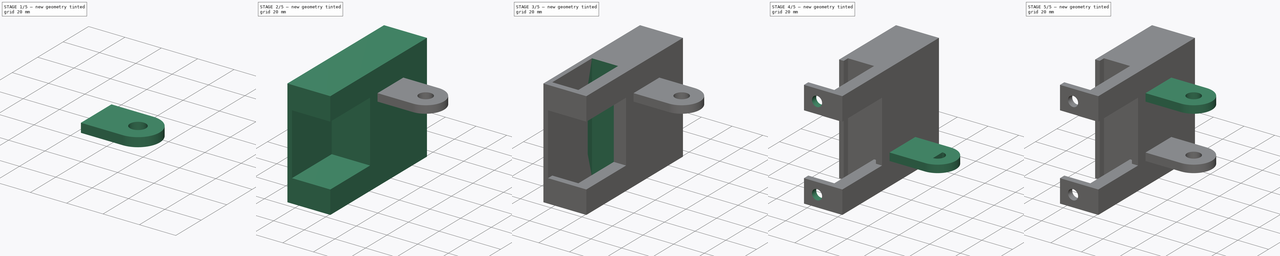
[diagram: build sequence overview — one tinted view per stage of 5, left to right]
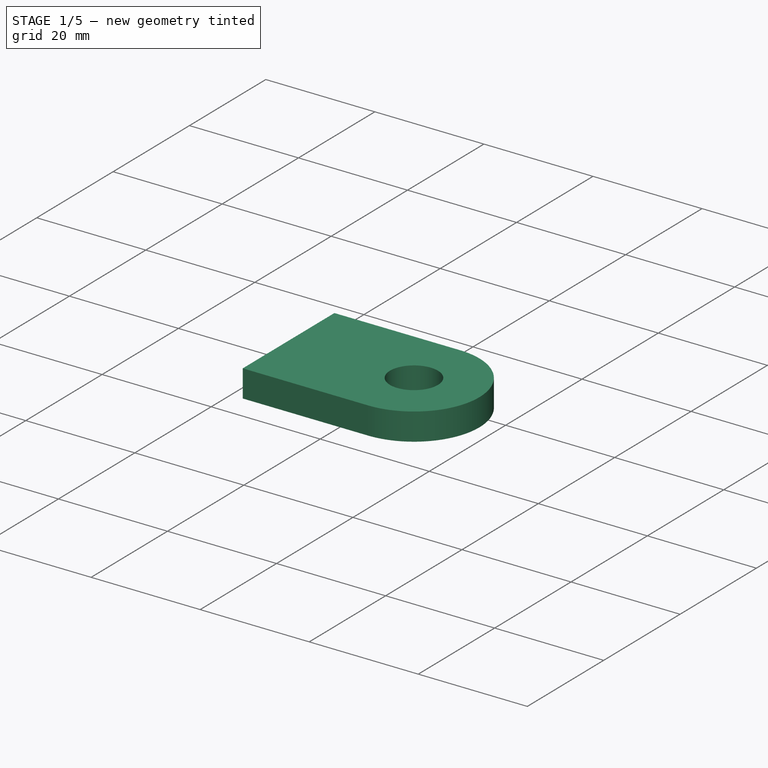
[diagram: stage 1 of 5 — iso view after this stage's code; geometry added in this stage tinted green]
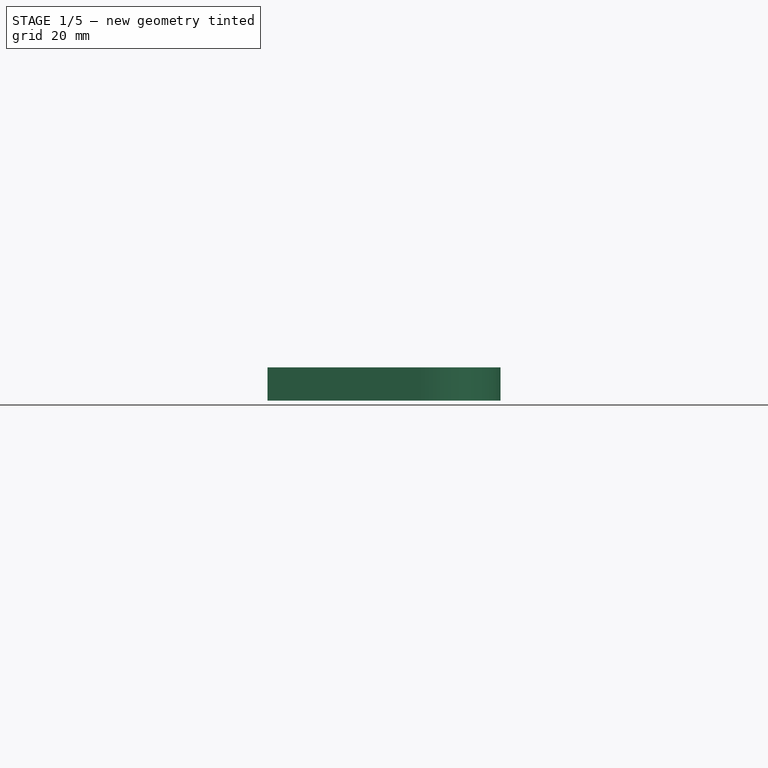
[diagram: stage 1 of 5 — front view after this stage's code; geometry added in this stage tinted green]
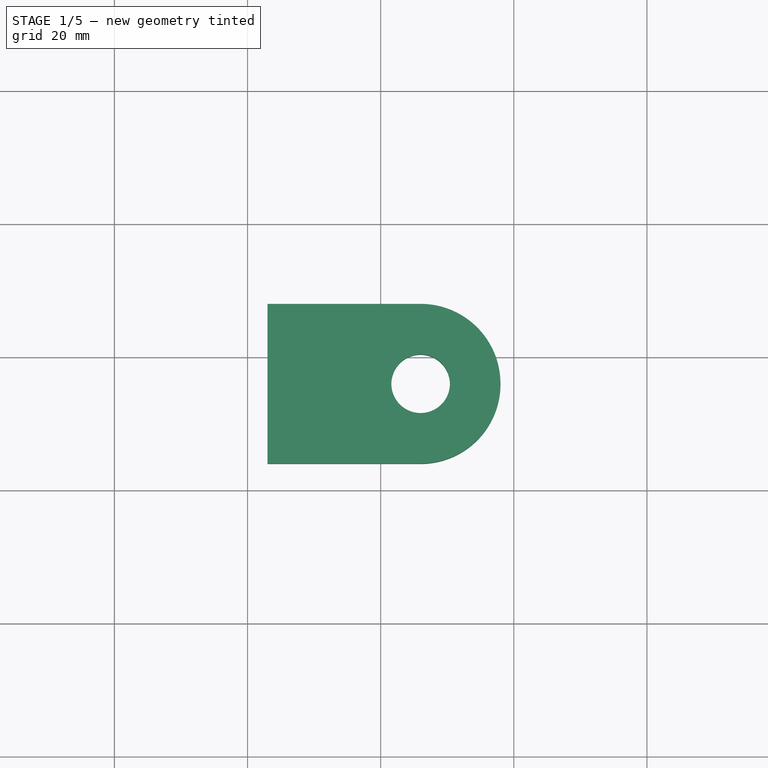
[diagram: stage 1 of 5 — top view after this stage's code; geometry added in this stage tinted green]
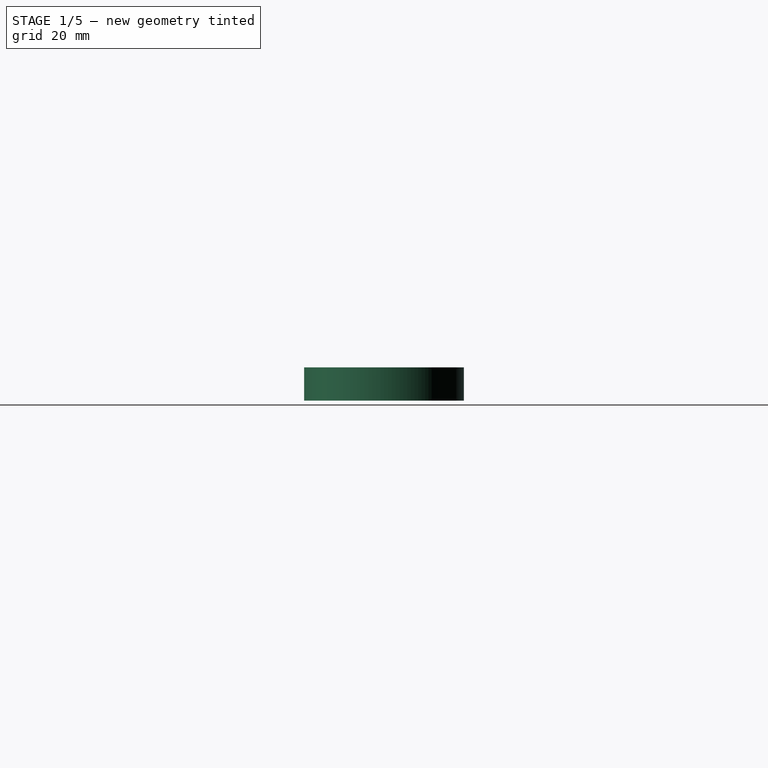
[diagram: stage 1 of 5 — right view after this stage's code; geometry added in this stage tinted green]
FCSTD DOCUMENT  (FreeCAD 0.17R13541 (Git))
Label: LimitSwitchHolder_y-plus
License: All rights reserved
LicenseURL: http://en.wikipedia.org/wiki/All_rights_reserved
objects: Sketcher::SketchObject×15, PartDesign::Pad×10, PartDesign::Body×10, PartDesign::ShapeBinder×9, PartDesign::Boolean×9, PartDesign::Hole×3
note: 69 computed .brp shape members not serialized (recipe doc carries the construction recipe); baked Part::Feature solids carry a one-line shape summary decoded from their .brp

FEATURE [PartDesign::Body] Body009
  Group = -> [CopyPad006,Sketch010,Pad007,Boolean005,Sketch016,Hole001]
  Origin = -> Origin009
  Tip = -> Hole001
FEATURE [PartDesign::ShapeBinder] CopyPad007
FEATURE [Sketcher::SketchObject] Sketch018
  MapMode = 5
  Placement = pos=(0,0,55) rot=(0,0,1;0rad)
  Support = -> [CopyPad007]
  sketch-geometry (1):
    g0: Circle CenterX=46 CenterY=56 CenterZ=0 NormalX=0 NormalY=0 NormalZ=1 AngleXU=0 Radius=12
  constraints (3):
    c: DistanceY(g-1,g0) = 56
    c: DistanceX(g-1,g0) = 46
    c: Radius(g0) = 12
FEATURE [PartDesign::Pad] Pad011
  Length = 5
  Length2 = 100
  Profile = -> Sketch018
  Reversed = true
  Type = 0
FEATURE [PartDesign::ShapeBinder] CopyHole002
FEATURE [Sketcher::SketchObject] Sketch019
  MapMode = 5
  Placement = pos=(23,0,0) rot=(0.57735,0.57735,0.57735;2.0944rad)
  Support = -> [CopyHole002]
  sketch-geometry (4):
    g0: LineSegment StartX=44 StartY=20 StartZ=0 EndX=68 EndY=20 EndZ=0
    g1: LineSegment StartX=68 StartY=20 StartZ=0 EndX=68 EndY=15 EndZ=0
    g2: LineSegment StartX=68 StartY=15 StartZ=0 EndX=44 EndY=15 EndZ=0
    g3: LineSegment StartX=44 StartY=15 StartZ=0 EndX=44 EndY=20 EndZ=0
  constraints (12):
    c: Coincident(g0,g1)
    c: Coincident(g1,g2)
    c: Coincident(g2,g3)
    c: Coincident(g3,g0)
    c: Horizontal(g0)
    c: Horizontal(g2)
    c: Vertical(g1)
    c: Vertical(g3)
    c: DistanceX(g2,g2) = 24
    c: DistanceY(g1,g1) = 5
    c: DistanceY(g-1,g2) = 15
    c: DistanceX(g-1,g2) = 44
FEATURE [PartDesign::Pad] Pad010
  Length = 23
  Length2 = 100
  Profile = -> Sketch019
  Type = 0
FEATURE [Sketcher::SketchObject] Sketch017
  MapMode = 5
  Placement = pos=(23,0,0) rot=(0.57735,-0.57735,-0.57735;2.0944rad)
  Support = -> [Pad010]
FEATURE [PartDesign::Body] Body012
  Group = -> [CopyHole002,Sketch019,Pad010,Sketch017]
  Origin = -> Origin012
  Placement = pos=(0,0,35) rot=(0,0,1;0rad)
  Tip = -> Pad010
FEATURE [PartDesign::Boolean] Boolean006
  BaseFeature = -> Pad011
  Group = -> [Body012]
  Type = 0
FEATURE [Sketcher::SketchObject] Sketch020
  MapMode = 5
  Placement = pos=(0,0,55) rot=(0,0,1;0rad)
  Support = -> [Boolean006]
  sketch-geometry (1):
    g0: Circle CenterX=46 CenterY=56 CenterZ=0 NormalX=0 NormalY=0 NormalZ=1 AngleXU=0 Radius=5.36884
  constraints (2):
    c: DistanceY(g-1,g0) = 56
    c: DistanceX(g-1,g0) = 46
FEATURE [PartDesign::Hole] Hole002
  BaseFeature = -> Boolean006
  Depth = 25
  DepthType = 1
  Diameter = 8.8
  DrillPoint = 1
  DrillPointAngle = 118
  HoleCutCountersinkAngle = 90
  HoleCutDepth = 0
  HoleCutDiameter = 8
  HoleCutType = 0
  ModelActualThread = false
  Profile = -> Sketch020
  Tapered = false
  TaperedAngle = 90
  ThreadAngle = 0
  ThreadClass = 0
  ThreadCutOffInner = 0
  ThreadCutOffOuter = 0
  ThreadDirection = 0
  ThreadFit = 0
  ThreadPitch = 0
  ThreadSize = 8
  ThreadType = 1
  Threaded = false
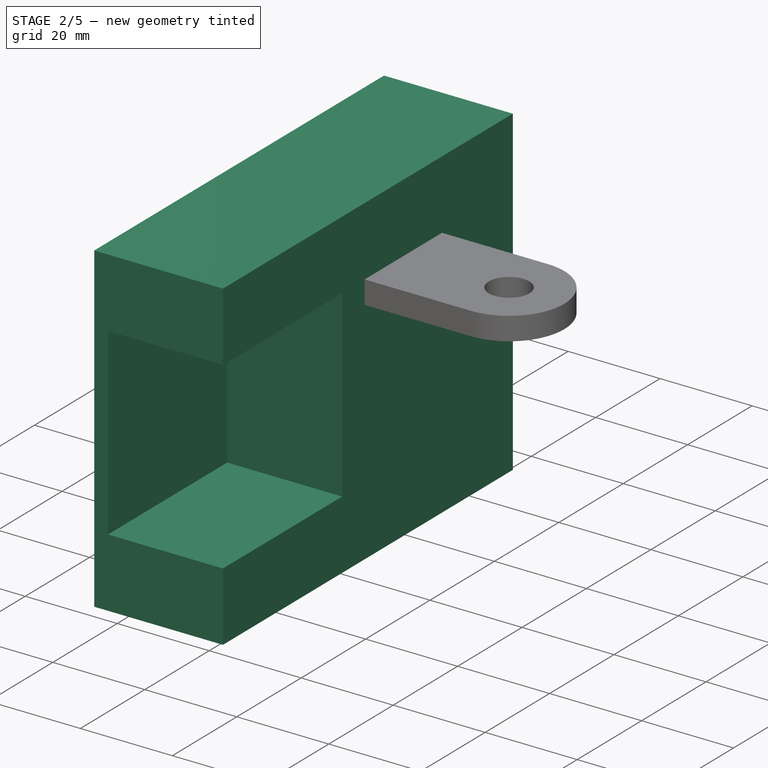
[diagram: stage 2 of 5 — iso view after this stage's code; geometry added in this stage tinted green]
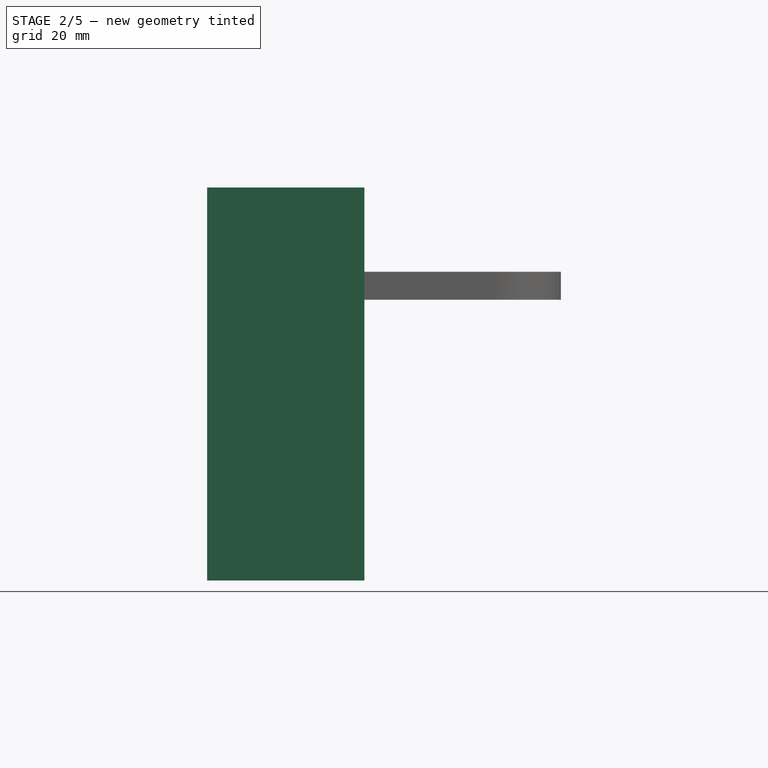
[diagram: stage 2 of 5 — front view after this stage's code; geometry added in this stage tinted green]
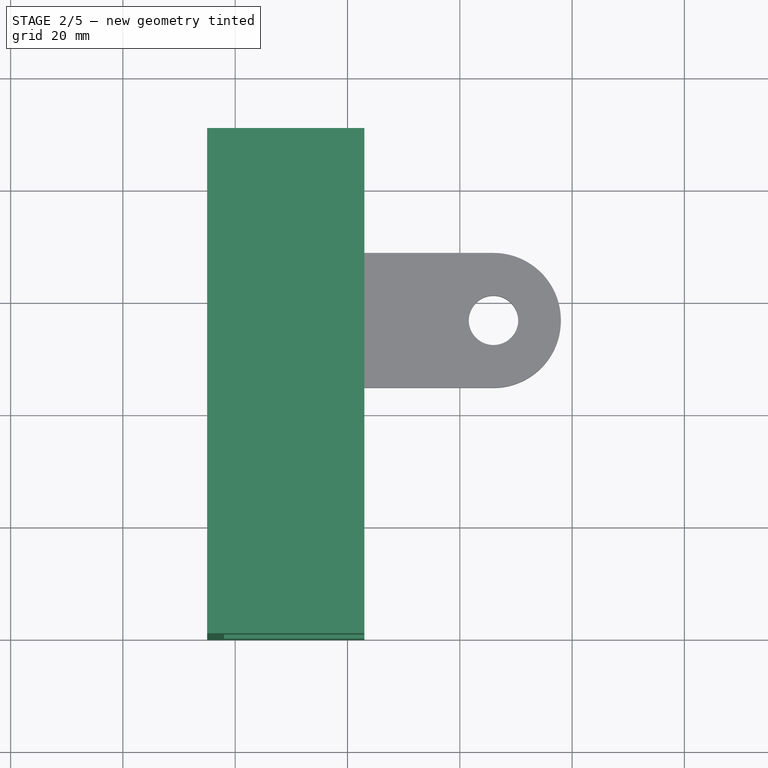
[diagram: stage 2 of 5 — top view after this stage's code; geometry added in this stage tinted green]
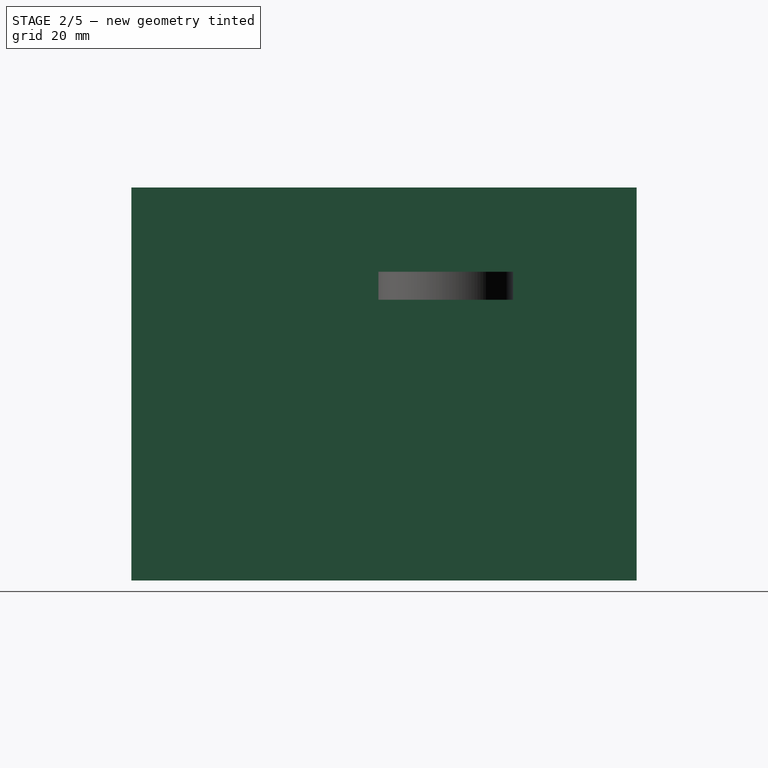
[diagram: stage 2 of 5 — right view after this stage's code; geometry added in this stage tinted green]
FEATURE [Sketcher::SketchObject] Sketch
  MapMode = 5
  Support = -> [XY_Plane]
  sketch-geometry (4):
    g0: LineSegment StartX=23 StartY=90 StartZ=0 EndX=-5 EndY=90 EndZ=0
    g1: LineSegment StartX=-5 StartY=90 StartZ=0 EndX=-5 EndY=0 EndZ=0
    g2: LineSegment StartX=-5 StartY=0 StartZ=0 EndX=23 EndY=0 EndZ=0
    g3: LineSegment StartX=23 StartY=0 StartZ=0 EndX=23 EndY=90 EndZ=0
  constraints (12):
    c: Coincident(g0,g1)
    c: Coincident(g1,g2)
    c: Coincident(g2,g3)
    c: Coincident(g3,g0)
    c: Horizontal(g0)
    c: Horizontal(g2)
    c: Vertical(g1)
    c: Vertical(g3)
    c: PointOnObject(g1,g-1)
    c: DistanceX(g1) = -5
    c: DistanceY(g1,g1) = 90
    c: DistanceX(g0,g0) = 28
FEATURE [PartDesign::Pad] Pad
  Length = 70
  Length2 = 100
  Profile = -> Sketch
  Type = 0
FEATURE [PartDesign::Body] Body002
  Group = -> [CopyPad001,Sketch002,Pad002]
  Origin = -> Origin002
  Tip = -> Pad002
FEATURE [PartDesign::ShapeBinder] CopyPad004
FEATURE [Sketcher::SketchObject] Sketch005
  MapMode = 5
  Placement = pos=(0,0,0) rot=(1,0,0;1.5708rad)
  Support = -> [CopyPad004]
  sketch-geometry (4):
    g0: LineSegment StartX=-2 StartY=55 StartZ=0 EndX=23 EndY=55 EndZ=0
    g1: LineSegment StartX=23 StartY=55 StartZ=0 EndX=23 EndY=15 EndZ=0
    g2: LineSegment StartX=23 StartY=15 StartZ=0 EndX=-2 EndY=15 EndZ=0
    g3: LineSegment StartX=-2 StartY=15 StartZ=0 EndX=-2 EndY=55 EndZ=0
  constraints (12):
    c: Coincident(g0,g1)
    c: Coincident(g1,g2)
    c: Coincident(g2,g3)
    c: Coincident(g3,g0)
    c: Horizontal(g0)
    c: Horizontal(g2)
    c: Vertical(g1)
    c: Vertical(g3)
    c: DistanceX(g2,g-1) = 2
    c: DistanceY(g-1,g2) = 15
    c: DistanceY(g3,g3) = 40
    c: DistanceX(g0,g0) = 25
FEATURE [PartDesign::Pad] Pad003
  Length = 37
  Length2 = 100
  Profile = -> Sketch005
  Reversed = true
  Type = 0
FEATURE [PartDesign::Body] Body005
  Group = -> [CopyPad004,Sketch005,Pad003]
  Origin = -> Origin005
  Tip = -> Pad003
FEATURE [PartDesign::Boolean] Boolean
  BaseFeature = -> Pad
  Group = -> [Body005]
  Type = 1
FEATURE [PartDesign::ShapeBinder] CopyBoolean002
FEATURE [Sketcher::SketchObject] Sketch006
  MapMode = 5
  Placement = pos=(0,37,0) rot=(1,0,0;1.5708rad)
  Support = -> [CopyBoolean002]
  sketch-geometry (4):
    g0: LineSegment StartX=15 StartY=55 StartZ=0 EndX=19 EndY=55 EndZ=0
    g1: LineSegment StartX=19 StartY=55 StartZ=0 EndX=19 EndY=15 EndZ=0
    g2: LineSegment StartX=19 StartY=15 StartZ=0 EndX=15 EndY=15 EndZ=0
    g3: LineSegment StartX=15 StartY=15 StartZ=0 EndX=15 EndY=55 EndZ=0
  constraints (12):
    c: Coincident(g0,g1)
    c: Coincident(g1,g2)
    c: Coincident(g2,g3)
    c: Coincident(g3,g0)
    c: Horizontal(g0)
    c: Horizontal(g2)
    c: Vertical(g1)
    c: Vertical(g3)
    c: DistanceY(g2) = 15
    c: DistanceX(g-1,g2) = 15
    c: DistanceY(g3,g3) = 40
    c: DistanceX(g0,g0) = 4
FEATURE [PartDesign::Pad] Pad004
  Length = 4
  Length2 = 100
  Profile = -> Sketch006
  Reversed = true
  Type = 0
FEATURE [PartDesign::ShapeBinder] CopyBoolean003
FEATURE [Sketcher::SketchObject] Sketch007
  MapMode = 5
  Placement = pos=(-5,0,0) rot=(0.57735,-0.57735,-0.57735;2.0944rad)
  Support = -> [CopyBoolean003]
  sketch-geometry (4):
    g0: LineSegment StartX=-37 StartY=70 StartZ=0 EndX=0 EndY=70 EndZ=0
    g1: LineSegment StartX=0 StartY=70 StartZ=0 EndX=0 EndY=0 EndZ=0
    g2: LineSegment StartX=0 StartY=0 StartZ=0 EndX=-37 EndY=0 EndZ=0
    g3: LineSegment StartX=-37 StartY=0 StartZ=0 EndX=-37 EndY=70 EndZ=0
  constraints (12):
    c: Coincident(g0,g1)
    c: Coincident(g1,g2)
    c: Coincident(g2,g3)
    c: Coincident(g3,g0)
    c: Horizontal(g0)
    c: Horizontal(g2)
    c: Vertical(g1)
    c: Vertical(g3)
    c: DistanceX(g2,g2) = 37
    c: DistanceY(g1,g1) = 70
    c: DistanceX(g1) = 0
    c: DistanceY(g1,g-1) = 0
FEATURE [PartDesign::Pad] Pad005
  Length = 3
  Length2 = 100
  Profile = -> Sketch007
  Reversed = true
  Type = 0
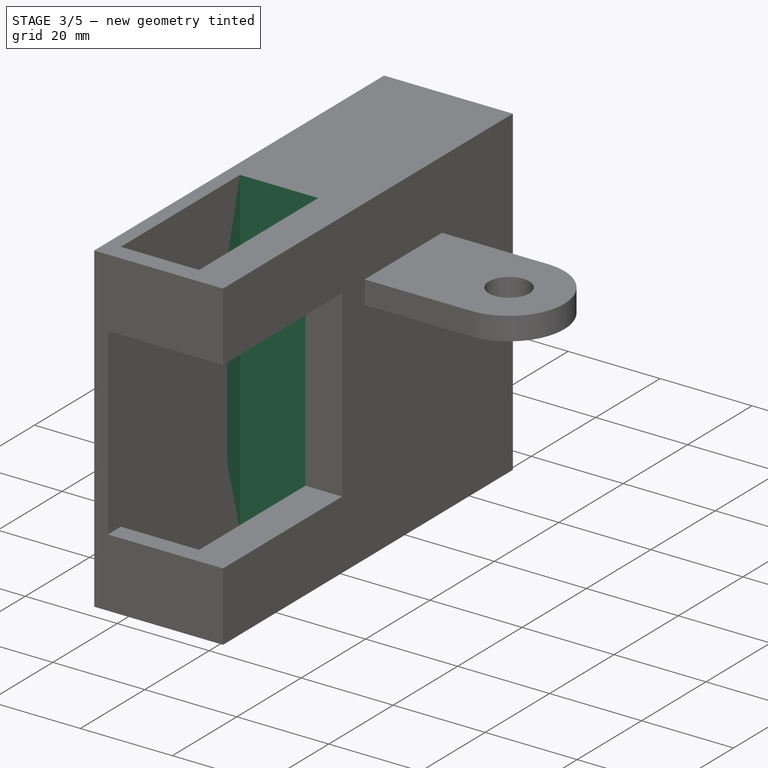
[diagram: stage 3 of 5 — iso view after this stage's code; geometry added in this stage tinted green]
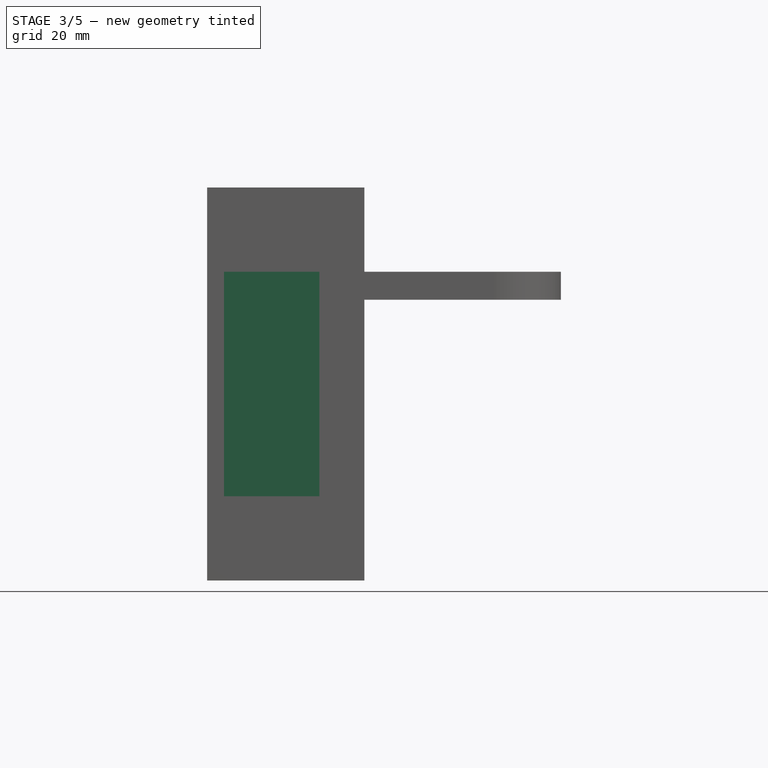
[diagram: stage 3 of 5 — front view after this stage's code; geometry added in this stage tinted green]
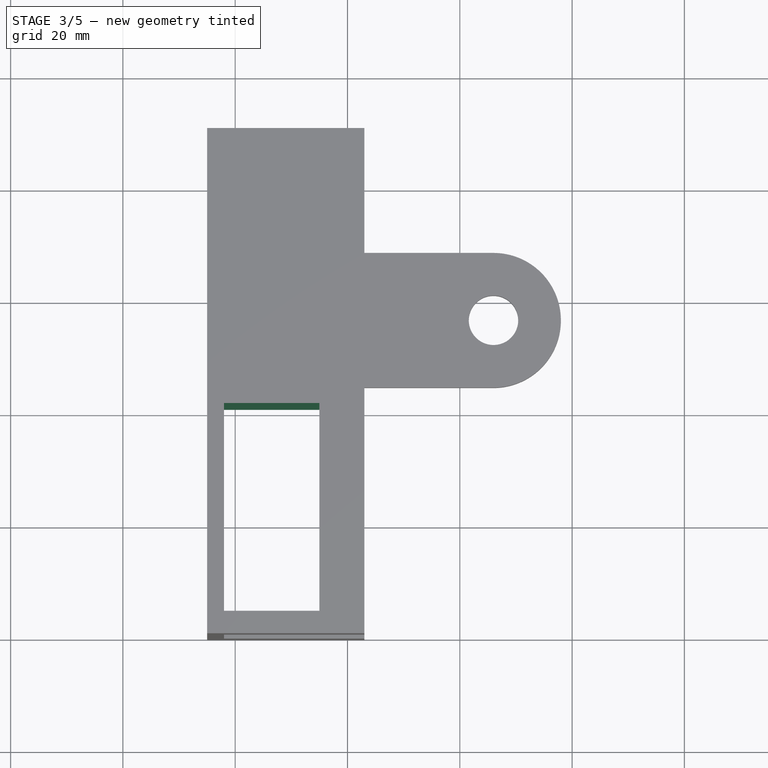
[diagram: stage 3 of 5 — top view after this stage's code; geometry added in this stage tinted green]
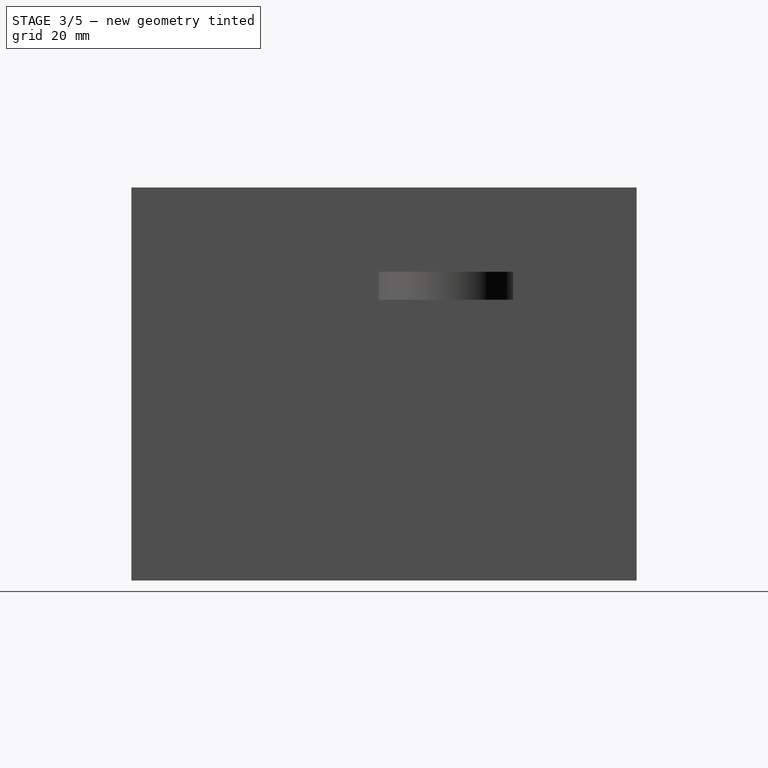
[diagram: stage 3 of 5 — right view after this stage's code; geometry added in this stage tinted green]
FEATURE [PartDesign::ShapeBinder] CopyPad
FEATURE [Sketcher::SketchObject] Sketch001
  MapMode = 5
  Placement = pos=(-5,0,0) rot=(0.57735,-0.57735,-0.57735;2.0944rad)
  Support = -> [CopyPad]
  sketch-geometry (4):
    g0: LineSegment StartX=-86.8101 StartY=66.9971 StartZ=0 EndX=-43.8101 EndY=66.9971 EndZ=0
    g1: LineSegment StartX=-43.8101 StartY=66.9971 StartZ=0 EndX=-43.8101 EndY=37.9971 EndZ=0
    g2: LineSegment StartX=-43.8101 StartY=37.9971 StartZ=0 EndX=-86.8101 EndY=37.9971 EndZ=0
    g3: LineSegment StartX=-86.8101 StartY=37.9971 StartZ=0 EndX=-86.8101 EndY=66.9971 EndZ=0
  constraints (10):
    c: Coincident(g0,g1)
    c: Coincident(g1,g2)
    c: Coincident(g2,g3)
    c: Coincident(g3,g0)
    c: Horizontal(g0)
    c: Horizontal(g2)
    c: Vertical(g1)
    c: Vertical(g3)
    c: DistanceY(g1,g1) = 29
    c: DistanceX(g2,g2) = 43
FEATURE [PartDesign::Pad] Pad001
  Length = 2
  Length2 = 100
  Profile = -> Sketch001
  Reversed = true
  Type = 0
FEATURE [PartDesign::Body] Body001
  Group = -> [CopyPad,Sketch001,Pad001]
  Origin = -> Origin001
  Tip = -> Pad001
FEATURE [PartDesign::ShapeBinder] CopyPad001
FEATURE [Sketcher::SketchObject] Sketch002
  MapMode = 5
  Placement = pos=(0,0,0) rot=(1,0,0;3.14159rad)
  Support = -> [CopyPad001]
  sketch-geometry (4):
    g0: LineSegment StartX=-2 StartY=-4 StartZ=0 EndX=15 EndY=-4 EndZ=0
    g1: LineSegment StartX=15 StartY=-4 StartZ=0 EndX=15 EndY=-41 EndZ=0
    g2: LineSegment StartX=15 StartY=-41 StartZ=0 EndX=-2 EndY=-41 EndZ=0
    g3: LineSegment StartX=-2 StartY=-41 StartZ=0 EndX=-2 EndY=-4 EndZ=0
  constraints (12):
    c: Coincident(g0,g1)
    c: Coincident(g1,g2)
    c: Coincident(g2,g3)
    c: Coincident(g3,g0)
    c: Horizontal(g0)
    c: Horizontal(g2)
    c: Vertical(g1)
    c: Vertical(g3)
    c: DistanceY(g0,g-1) = 4
    c: DistanceX(g0,g-1) = 2
    c: DistanceX(g0,g0) = 17
    c: DistanceY(g1,g1) = 37
FEATURE [PartDesign::Pad] Pad002
  Length = 70
  Length2 = 100
  Profile = -> Sketch002
  Reversed = true
  Type = 0
FEATURE [PartDesign::Boolean] Boolean001
  BaseFeature = -> Boolean
  Group = -> [Body001]
  Type = 1
FEATURE [PartDesign::Boolean] Boolean002
  BaseFeature = -> Boolean001
  Group = -> [Body002]
  Type = 1
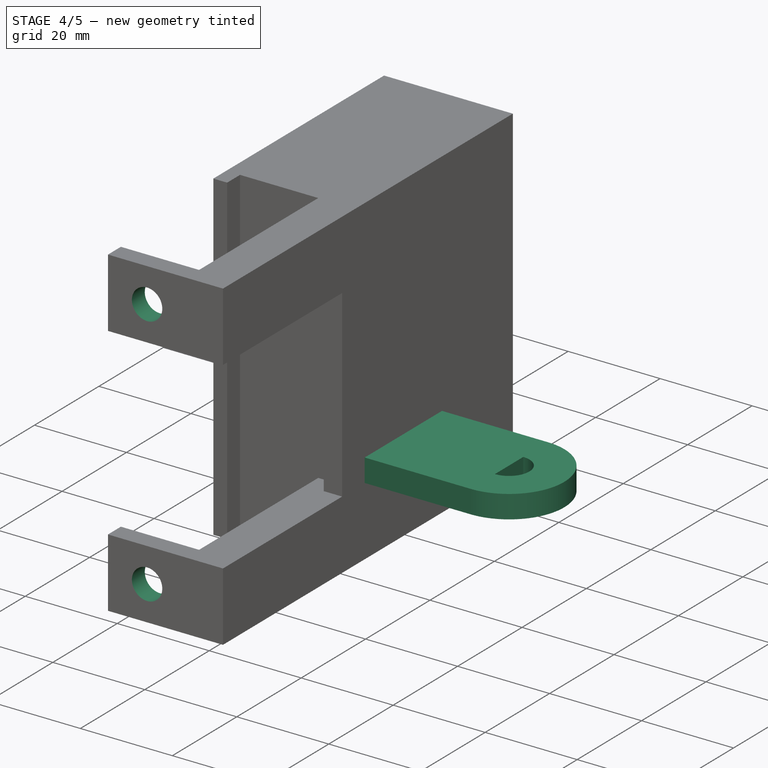
[diagram: stage 4 of 5 — iso view after this stage's code; geometry added in this stage tinted green]
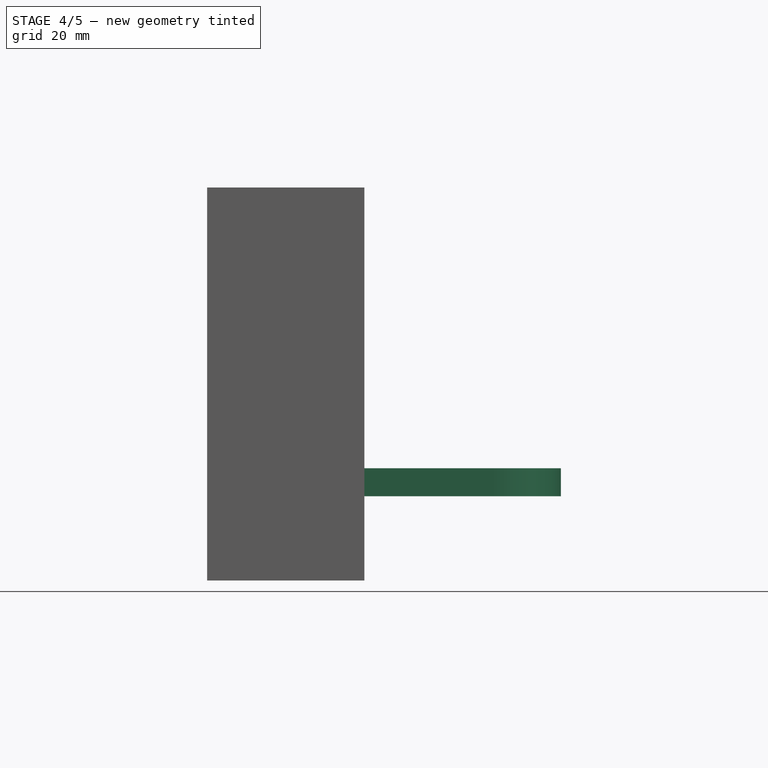
[diagram: stage 4 of 5 — front view after this stage's code; geometry added in this stage tinted green]
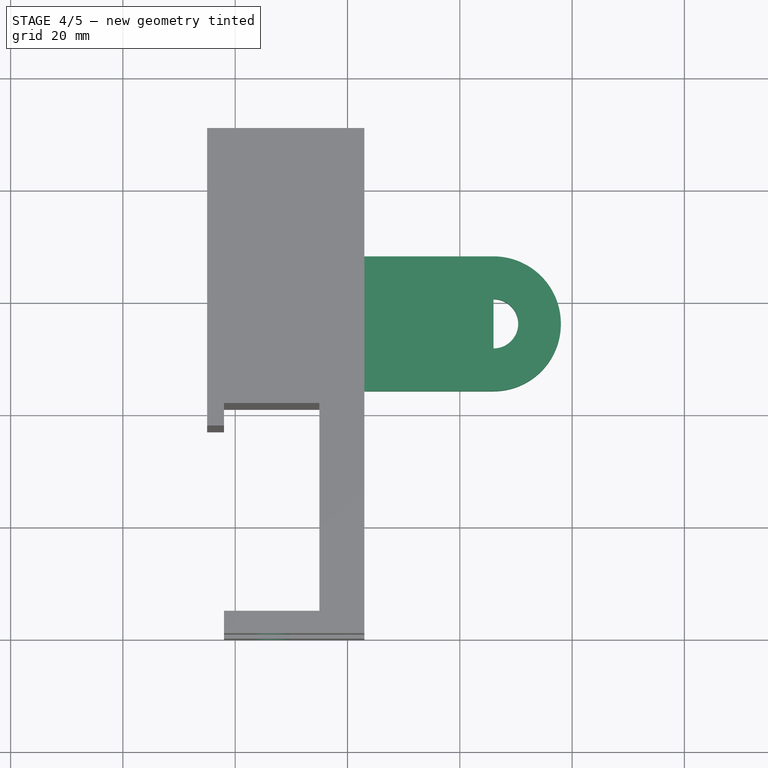
[diagram: stage 4 of 5 — top view after this stage's code; geometry added in this stage tinted green]
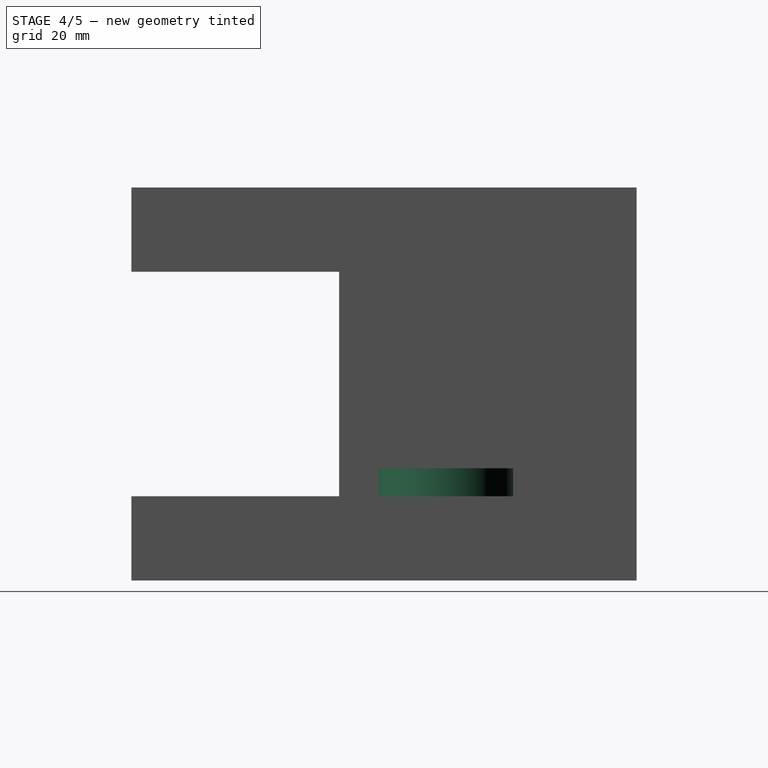
[diagram: stage 4 of 5 — right view after this stage's code; geometry added in this stage tinted green]
FEATURE [PartDesign::Body] Body006
  Group = -> [CopyBoolean002,Sketch006,Pad004]
  Origin = -> Origin006
  Tip = -> Pad004
FEATURE [PartDesign::Boolean] Boolean003
  BaseFeature = -> Boolean002
  Group = -> [Body006]
  Type = 1
FEATURE [PartDesign::Body] Body007
  Group = -> [CopyBoolean003,Sketch007,Pad005]
  Origin = -> Origin007
  Tip = -> Pad005
FEATURE [PartDesign::Boolean] Boolean004
  BaseFeature = -> Boolean003
  Group = -> [Body007]
  Type = 1
FEATURE [Sketcher::SketchObject] Sketch008
  MapMode = 5
  Placement = pos=(0,4,0) rot=(0,0.707107,0.707107;3.14159rad)
  Support = -> [Boolean004]
  sketch-geometry (2):
    g0: Circle CenterX=-6.5 CenterY=7.5 CenterZ=0 NormalX=0 NormalY=0 NormalZ=1 AngleXU=0 Radius=3.6687
    g1: Circle CenterX=-6.5 CenterY=62.5 CenterZ=0 NormalX=0 NormalY=0 NormalZ=1 AngleXU=0 Radius=3.19322
  constraints (4):
    c: DistanceY(g0) = 7.5
    c: DistanceX(g0,g-1) = 6.5
    c: Vertical(g1,g0)
    c: DistanceY(g0,g1) = 55
FEATURE [PartDesign::Hole] Hole
  BaseFeature = -> Boolean004
  Depth = 25
  DepthType = 1
  Diameter = 6.6
  DrillPoint = 1
  DrillPointAngle = 118
  HoleCutCountersinkAngle = 90
  HoleCutDepth = 0
  HoleCutDiameter = 6
  HoleCutType = 0
  ModelActualThread = false
  Profile = -> Sketch008
  Tapered = false
  TaperedAngle = 90
  ThreadAngle = 0
  ThreadClass = 0
  ThreadCutOffInner = 0
  ThreadCutOffOuter = 0
  ThreadDirection = 0
  ThreadFit = 0
  ThreadPitch = 0
  ThreadSize = 7
  ThreadType = 1
  Threaded = false
FEATURE [PartDesign::ShapeBinder] CopyHole001
FEATURE [Sketcher::SketchObject] Sketch014
  MapMode = 5
  Placement = pos=(23,0,0) rot=(0.57735,0.57735,0.57735;2.0944rad)
  Support = -> [CopyHole001]
  sketch-geometry (4):
    g0: LineSegment StartX=44 StartY=20 StartZ=0 EndX=68 EndY=20 EndZ=0
    g1: LineSegment StartX=68 StartY=20 StartZ=0 EndX=68 EndY=15 EndZ=0
    g2: LineSegment StartX=68 StartY=15 StartZ=0 EndX=44 EndY=15 EndZ=0
    g3: LineSegment StartX=44 StartY=15 StartZ=0 EndX=44 EndY=20 EndZ=0
  constraints (12):
    c: Coincident(g0,g1)
    c: Coincident(g1,g2)
    c: Coincident(g2,g3)
    c: Coincident(g3,g0)
    c: Horizontal(g0)
    c: Horizontal(g2)
    c: Vertical(g1)
    c: Vertical(g3)
    c: DistanceX(g2,g2) = 24
    c: DistanceY(g1,g1) = 5
    c: DistanceY(g-1,g2) = 15
    c: DistanceX(g-1,g2) = 44
FEATURE [PartDesign::Pad] Pad009
  Length = 23
  Length2 = 100
  Profile = -> Sketch014
  Type = 0
FEATURE [PartDesign::Body] Body013
  Group = -> [CopyPad007,Sketch018,Pad011,Boolean006,Sketch020,Hole002]
  Origin = -> Origin013
  Placement = pos=(0,0,-35) rot=(0,0,1;0rad)
  Tip = -> Hole002
FEATURE [PartDesign::Boolean] Boolean007
  BaseFeature = -> Hole
  Group = -> [Body013]
  Type = 0
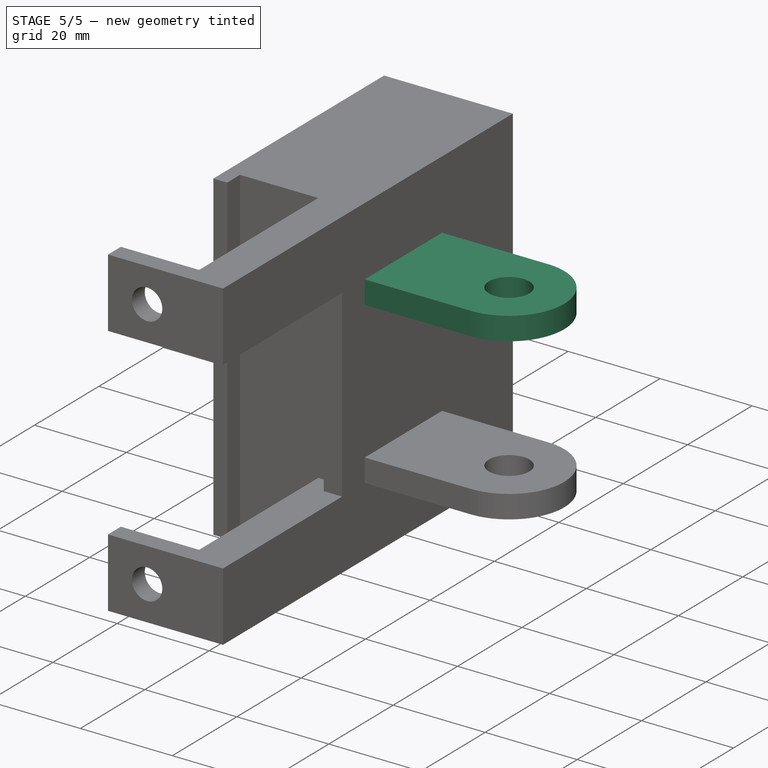
[diagram: stage 5 of 5 — iso view after this stage's code; geometry added in this stage tinted green]
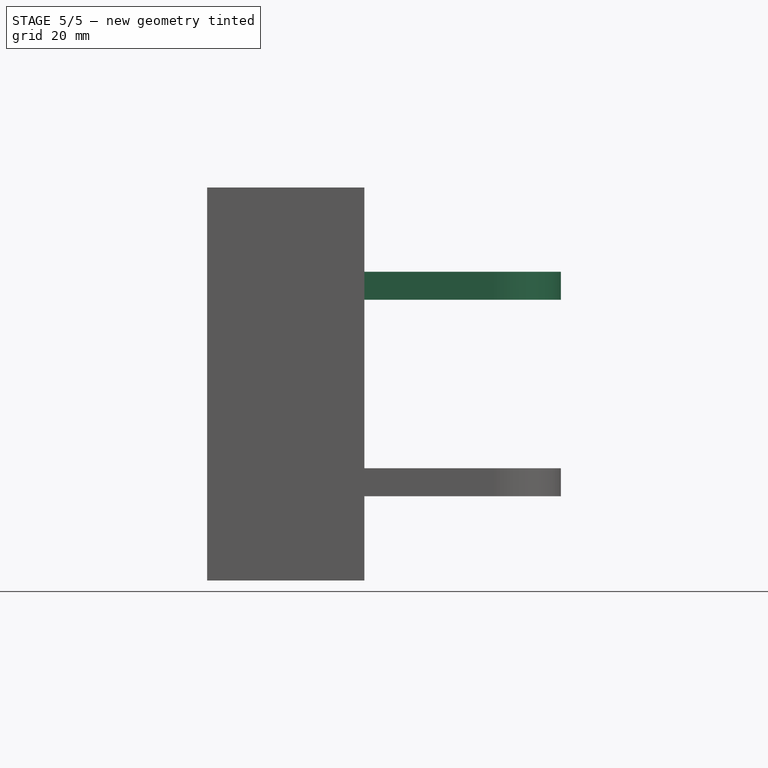
[diagram: stage 5 of 5 — front view after this stage's code; geometry added in this stage tinted green]
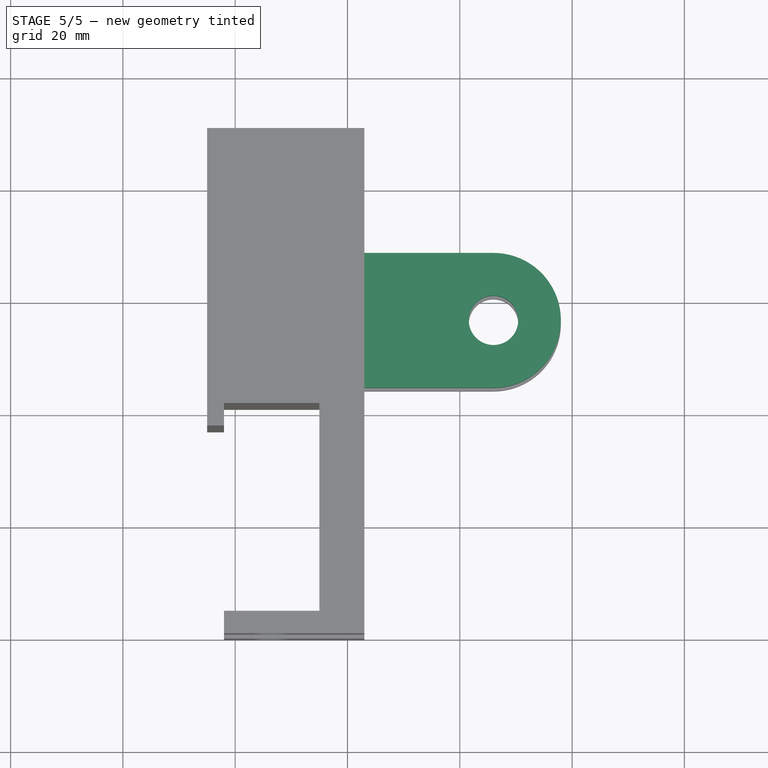
[diagram: stage 5 of 5 — top view after this stage's code; geometry added in this stage tinted green]
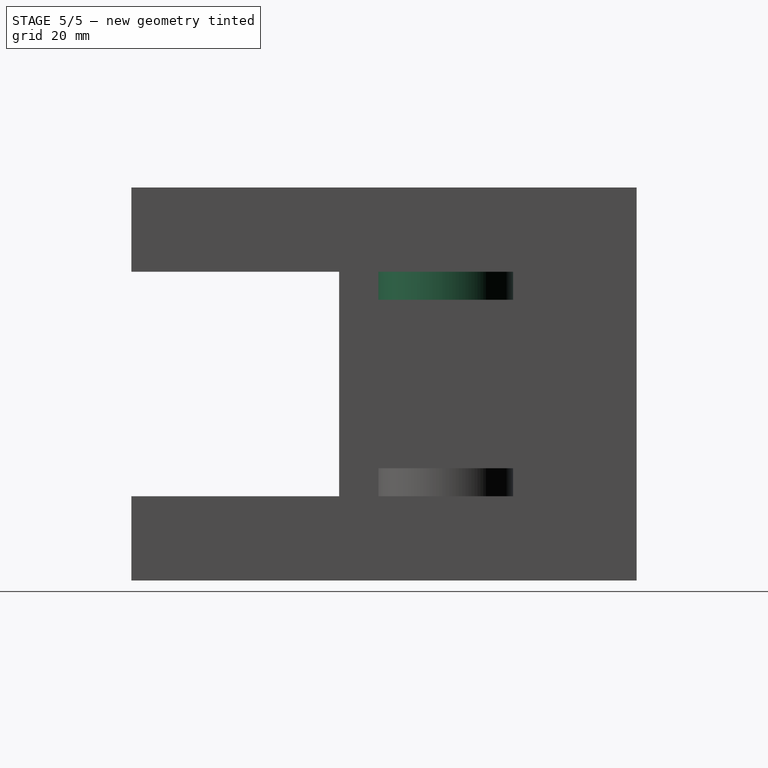
[diagram: stage 5 of 5 — right view after this stage's code; geometry added in this stage tinted green]
FEATURE [PartDesign::ShapeBinder] CopyPad006
FEATURE [Sketcher::SketchObject] Sketch010
  MapMode = 5
  Placement = pos=(0,0,55) rot=(0,0,1;0rad)
  Support = -> [CopyPad006]
  sketch-geometry (1):
    g0: Circle CenterX=46 CenterY=56 CenterZ=0 NormalX=0 NormalY=0 NormalZ=1 AngleXU=0 Radius=12
  constraints (3):
    c: DistanceY(g-1,g0) = 56
    c: DistanceX(g-1,g0) = 46
    c: Radius(g0) = 12
FEATURE [PartDesign::Pad] Pad007
  Length = 5
  Length2 = 100
  Profile = -> Sketch010
  Reversed = true
  Type = 0
FEATURE [Sketcher::SketchObject] Sketch015
  MapMode = 5
  Placement = pos=(23,0,0) rot=(0.57735,-0.57735,-0.57735;2.0944rad)
  Support = -> [Pad009]
FEATURE [PartDesign::Body] Body011
  Group = -> [CopyHole001,Sketch014,Pad009,Sketch015]
  Origin = -> Origin011
  Placement = pos=(0,0,35) rot=(0,0,1;0rad)
  Tip = -> Pad009
FEATURE [PartDesign::Boolean] Boolean005
  BaseFeature = -> Pad007
  Group = -> [Body011]
  Type = 0
FEATURE [Sketcher::SketchObject] Sketch016
  MapMode = 5
  Placement = pos=(0,0,55) rot=(0,0,1;0rad)
  Support = -> [Boolean005]
  sketch-geometry (1):
    g0: Circle CenterX=46 CenterY=56 CenterZ=0 NormalX=0 NormalY=0 NormalZ=1 AngleXU=0 Radius=5.36884
  constraints (2):
    c: DistanceY(g-1,g0) = 56
    c: DistanceX(g-1,g0) = 46
FEATURE [PartDesign::Hole] Hole001
  BaseFeature = -> Boolean005
  Depth = 25
  DepthType = 1
  Diameter = 8.8
  DrillPoint = 1
  DrillPointAngle = 118
  HoleCutCountersinkAngle = 90
  HoleCutDepth = 0
  HoleCutDiameter = 8
  HoleCutType = 0
  ModelActualThread = false
  Profile = -> Sketch016
  Tapered = false
  TaperedAngle = 90
  ThreadAngle = 0
  ThreadClass = 0
  ThreadCutOffInner = 0
  ThreadCutOffOuter = 0
  ThreadDirection = 0
  ThreadFit = 0
  ThreadPitch = 0
  ThreadSize = 8
  ThreadType = 1
  Threaded = false
FEATURE [PartDesign::Boolean] Boolean008
  BaseFeature = -> Boolean007
  Group = -> [Body009]
  Type = 0
FEATURE [PartDesign::Body] Body
  Group = -> [Sketch,Pad,Boolean,Boolean001,Boolean002,Boolean003,Boolean004,Sketch008,Hole,Boolean007,Boolean008]
  Origin = -> Origin
  Tip = -> Boolean008
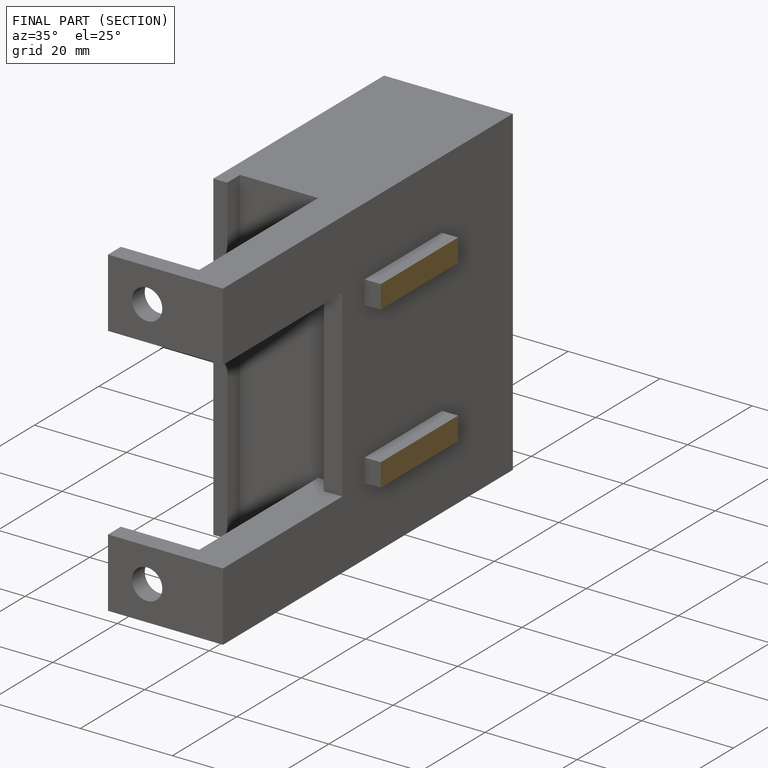
[diagram: finished part — half-section view (interior)]
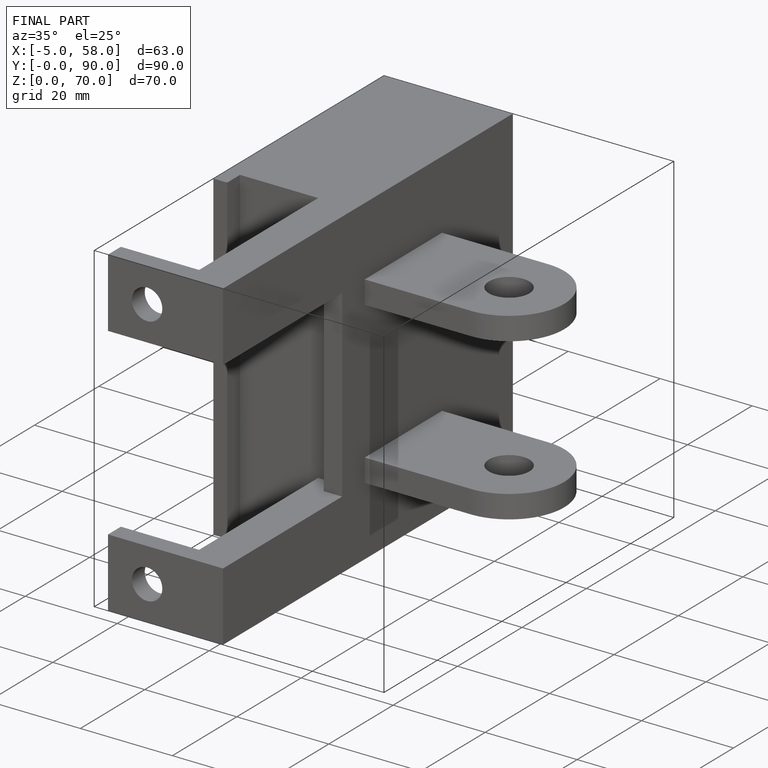
[diagram: finished part — iso view with bounding-box wireframe]
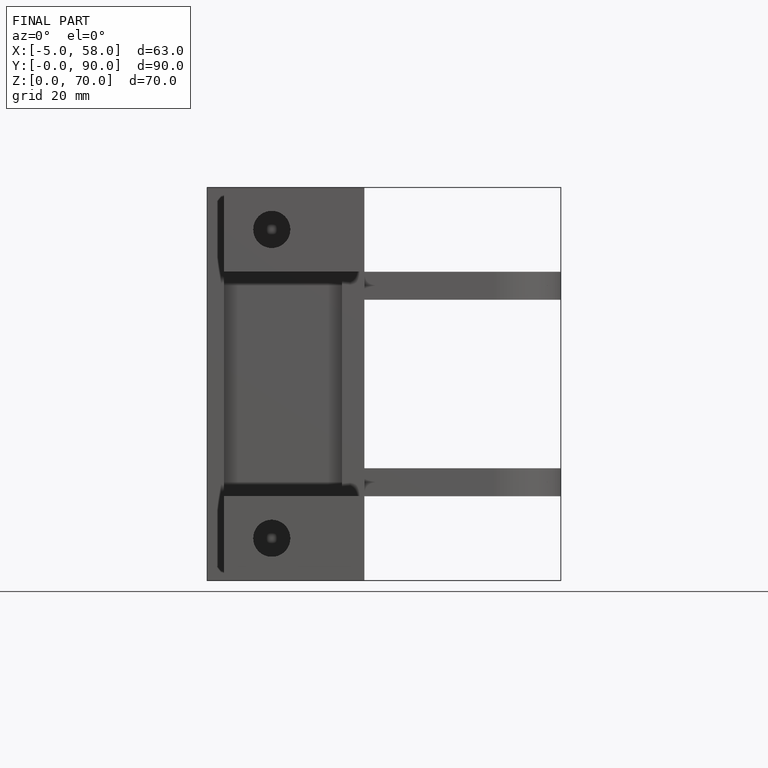
[diagram: finished part — front view with bounding-box wireframe]
